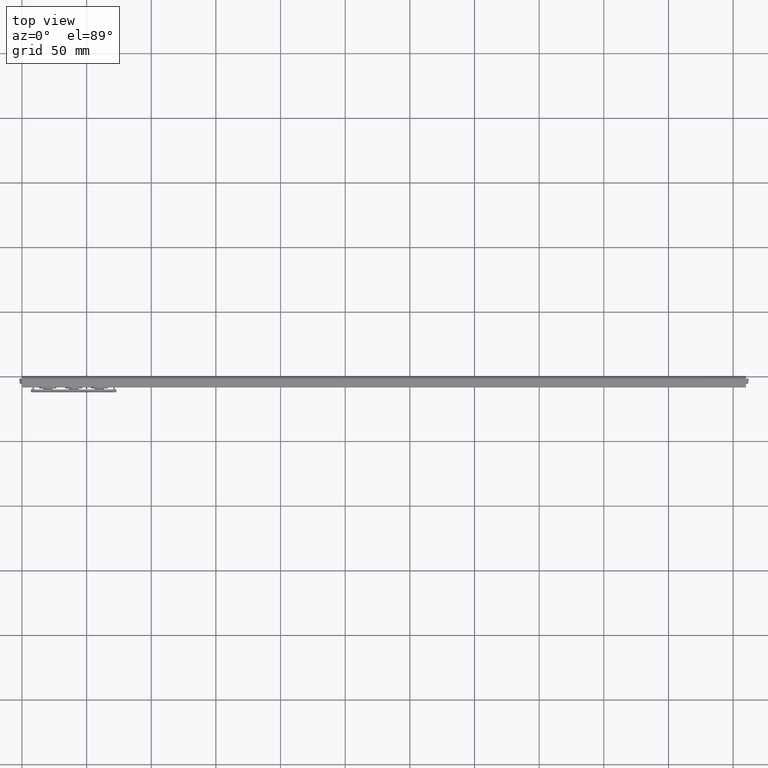
[diagram: clean part render]
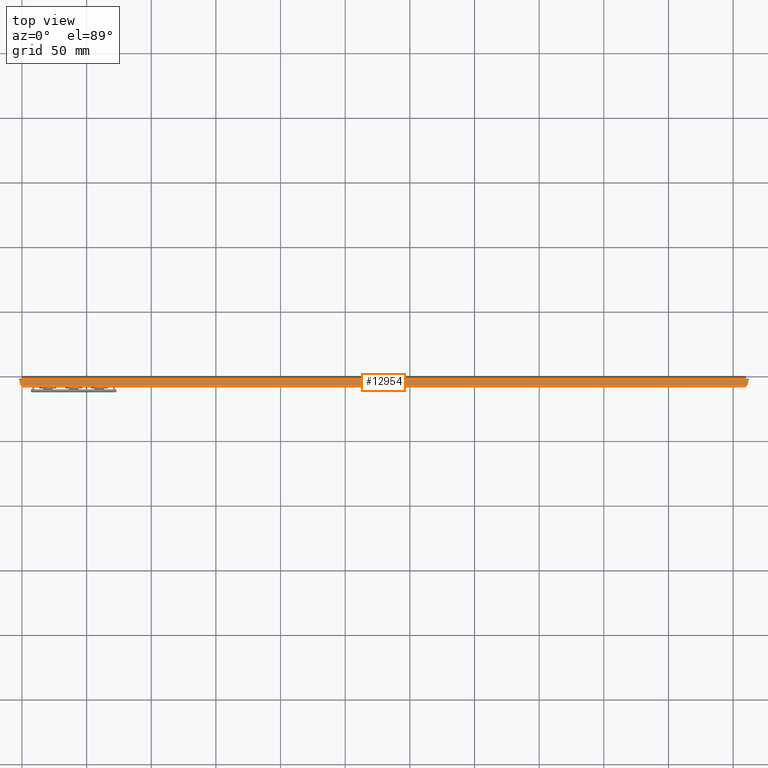
[diagram: same view with one face highlighted and labeled with its STEP entity id]
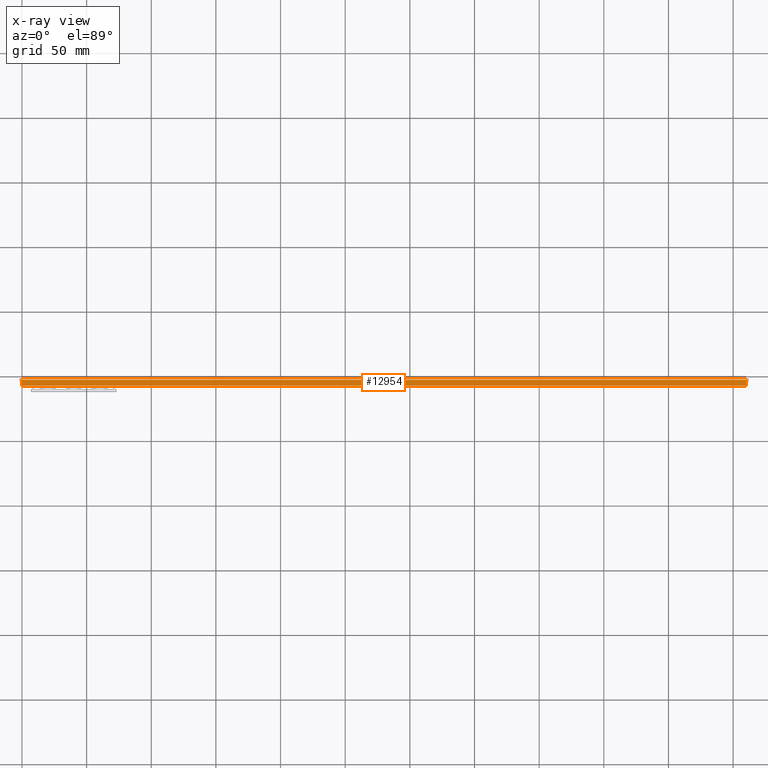
[diagram: x-ray of the same camera — body ghosted, the highlighted face saturated]
A machine part, top view. The second image highlights one B-rep face of the part: STEP entity #12954.
The next image is the same camera in x-ray: the body ghosted, the highlighted face saturated — about 0% of this face is hidden behind the body in this view.
In plain terms, the highlighted face is a freeform B-spline surface patch.
Its self-contained STEP definition (entity closure, byte-faithful):
#12778=CARTESIAN_POINT('',(0.0,-7.500000000000000,12.499999999880901));
#12779=VERTEX_POINT('',#12778);
#12793=CARTESIAN_POINT('',(0.0,-3.0,12.499999999880901));
#12794=VERTEX_POINT('',#12793);
#12795=CARTESIAN_POINT('',(0.0,-7.500000000000000,12.499999999880901));
#12796=CARTESIAN_POINT('',(0.0,-3.0,12.499999999880901));
#12797=QUASI_UNIFORM_CURVE('',1,(#12795,#12796),.UNSPECIFIED.,.F.,.U.);
#12798=EDGE_CURVE('',#12779,#12794,#12797,.T.);
#12824=CARTESIAN_POINT('',(560.0,-3.0,12.499999999880901));
#12825=VERTEX_POINT('',#12824);
#12839=CARTESIAN_POINT('',(560.0,-7.500000000000000,12.499999999880901));
#12840=VERTEX_POINT('',#12839);
#12841=CARTESIAN_POINT('',(560.0,-7.500000000000000,12.499999999880901));
#12842=CARTESIAN_POINT('',(560.0,-3.0,12.499999999880901));
#12843=QUASI_UNIFORM_CURVE('',1,(#12841,#12842),.UNSPECIFIED.,.F.,.U.);
#12844=EDGE_CURVE('',#12840,#12825,#12843,.T.);
#12929=CARTESIAN_POINT('',(560.0,-3.0,12.499999999880901));
#12930=CARTESIAN_POINT('',(0.0,-3.0,12.499999999880901));
#12931=QUASI_UNIFORM_CURVE('',1,(#12929,#12930),.UNSPECIFIED.,.F.,.U.);
#12932=EDGE_CURVE('',#12825,#12794,#12931,.T.);
#12939=CARTESIAN_POINT('',(-27.971998914611351,-7.724774991278127,12.499999999880901));
#12940=CARTESIAN_POINT('',(587.972013934981760,-7.724774991278127,12.499999999880901));
#12941=CARTESIAN_POINT('',(-27.971998914611351,-2.775224888022468,12.499999999880901));
#12942=CARTESIAN_POINT('',(587.972013934981760,-2.775224888022468,12.499999999880901));
#12943=B_SPLINE_SURFACE_WITH_KNOTS('',1,1,((#12939,#12941),(#12940,#12942)),.UNSPECIFIED.,.F.,.F.,.U.,(2,2),(2,2),(0.0,615.944012849593150),(0.0,4.949550103255660),.UNSPECIFIED.);
#12944=ORIENTED_EDGE('',*,*,#12798,.F.);
#12945=CARTESIAN_POINT('',(560.0,-7.500000000000000,12.499999999880901));
#12946=CARTESIAN_POINT('',(0.0,-7.500000000000000,12.499999999880901));
#12947=QUASI_UNIFORM_CURVE('',1,(#12945,#12946),.UNSPECIFIED.,.F.,.U.);
#12948=EDGE_CURVE('',#12840,#12779,#12947,.T.);
#12949=ORIENTED_EDGE('',*,*,#12948,.F.);
#12950=ORIENTED_EDGE('',*,*,#12844,.T.);
#12951=ORIENTED_EDGE('',*,*,#12932,.T.);
#12952=EDGE_LOOP('',(#12944,#12949,#12950,#12951));
#12953=FACE_OUTER_BOUND('',#12952,.T.);
#12954=ADVANCED_FACE('',(#12953),#12943,.T.);